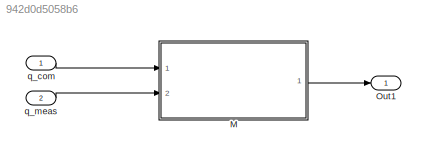
MODEL slx_942d0d5058b6
KIND model
CONFIG AbsTol = auto
CONFIG EnableMultiTasking = off
CONFIG FixedStep = auto
CONFIG MaxStep = auto
CONFIG MinStep = auto
CONFIG RelTol = 1e-3
CONFIG SampleTimeConstraint = Unconstrained
CONFIG Solver = VariableStepAuto
CONFIG SolverName = VariableStepAuto
CONFIG StartTime = 0.0
CONFIG StopTime = 10.0
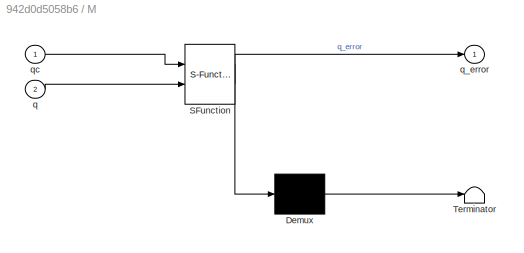
BLOCK [SubSystem] M
  ErrorFcn = Stateflow.Translate.translate
  PermitHierarchicalResolution = ExplicitOnly
  Ports = [2, 1]
  RequestExecContextInheritance = off
  SFBlockType = MATLAB Function
  TreatAsAtomicUnit = on
  Variant = off
BLOCK [Demux] M/ Demux 
  Outputs = 1
  Ports = [1, 1]
BLOCK [S-Function] M/ SFunction 
  EnableBusSupport = on
  FunctionName = sf_sfun
  PortCounts = [2 2]
  Ports = [2, 2]
  SFcnIsStateOwnerBlock = off
  SFunctionDeploymentMode = off
  Tag = Stateflow S-Function bio_matfunc_quat_error 36
BLOCK [Terminator] M/ Terminator 
BLOCK [Inport] M/q
  IconDisplay = Port number
  Port = 2
BLOCK [Outport] M/q_error
  IconDisplay = Port number
BLOCK [Inport] M/qc
  IconDisplay = Port number
BLOCK [Outport] Out1
  IconDisplay = Port number
BLOCK [Inport] q_com
  IconDisplay = Port number
  OutDataTypeStr = double
  PortDimensions = 4
BLOCK [Inport] q_meas
  IconDisplay = Port number
  OutDataTypeStr = double
  Port = 2
  PortDimensions = 4
LINE M:1 -> Out1:1
LINE q_com:1 -> M:1
LINE q_meas:1 -> M:2
CHART M states=1 transitions=1
  STATE_LABEL 'eML_blk_kernel()'
  STATE_LABEL 'SCRIPT:\nfunction q_error = quat_error(qc,q)\n%#codegen\n\n%qc = q_comm\n%q = q_meas\n\nqcm = [qc(4) qc(3) -qc(2) -qc(1);\n       -qc(3) qc(4) qc(1) -qc(2);\n       qc(2) -qc(1) qc(4) -qc(3);\n       qc(1) qc(2) qc(3) qc(4)];\n\nq_error = qcm*[q(1);q(2);q(3);q(4)];'
